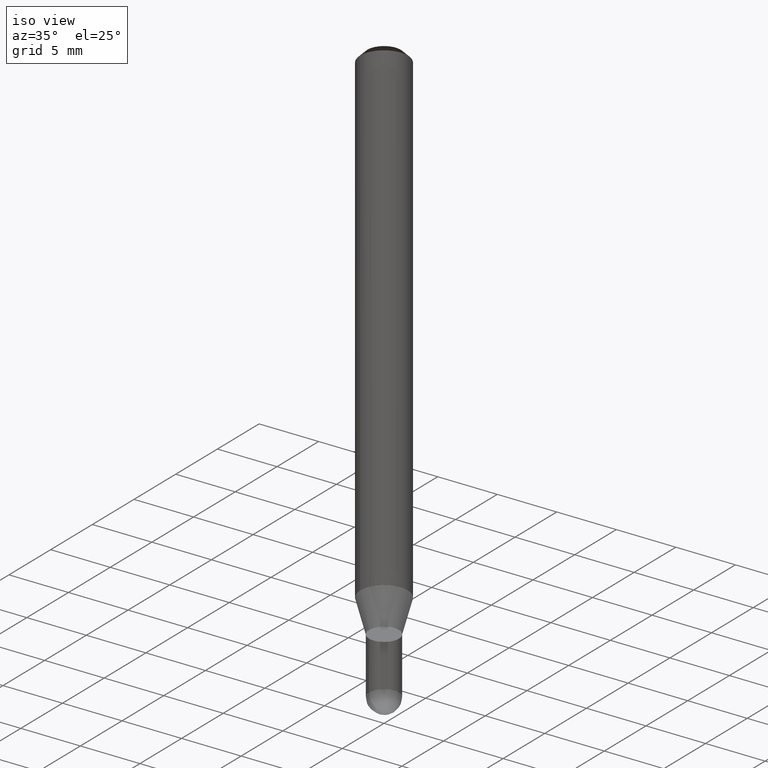
[diagram: clean part render]
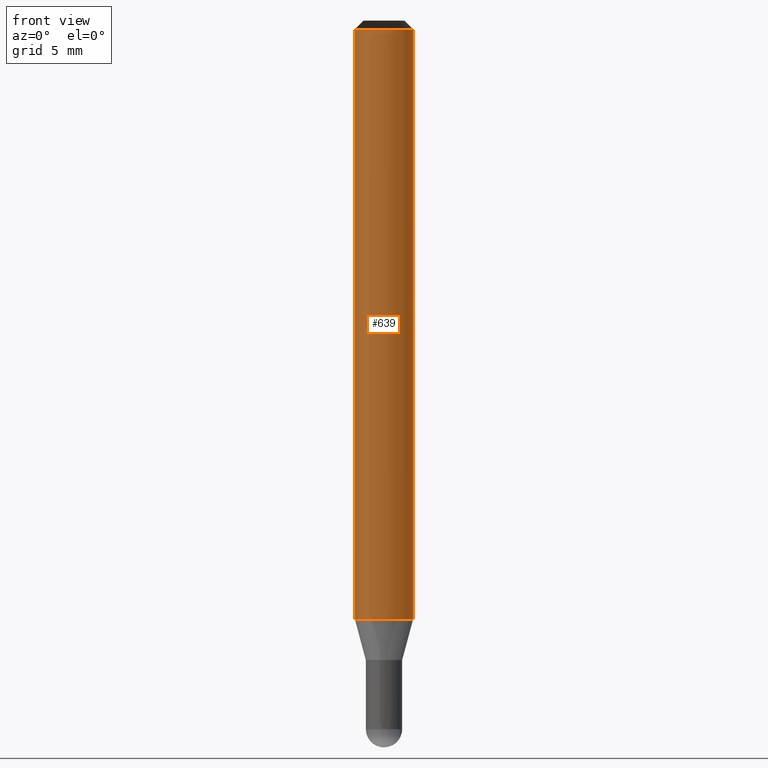
[diagram: tour spotlight — one face highlighted and labeled with its STEP entity id]
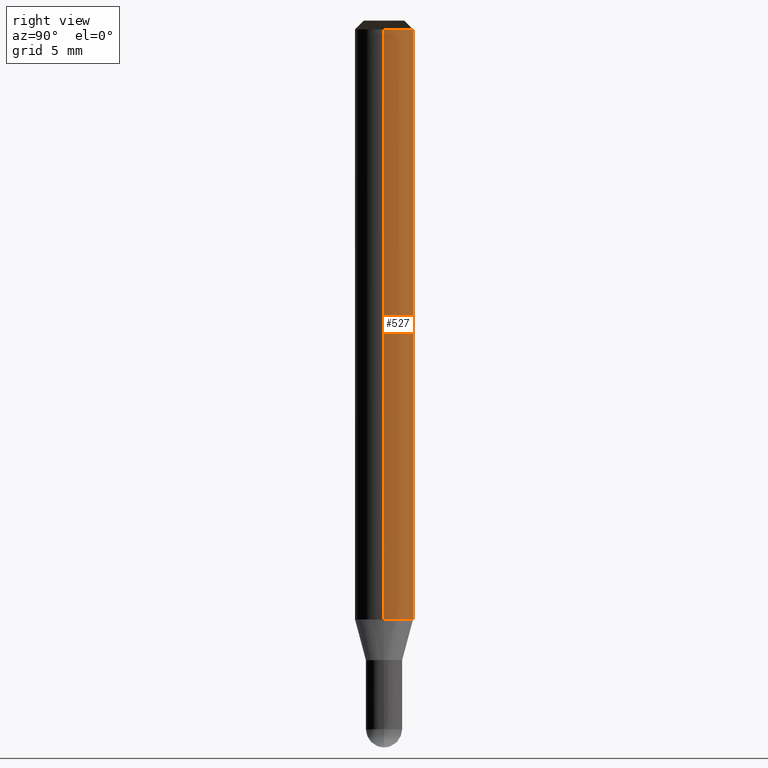
[diagram: tour spotlight — one face highlighted and labeled with its STEP entity id]
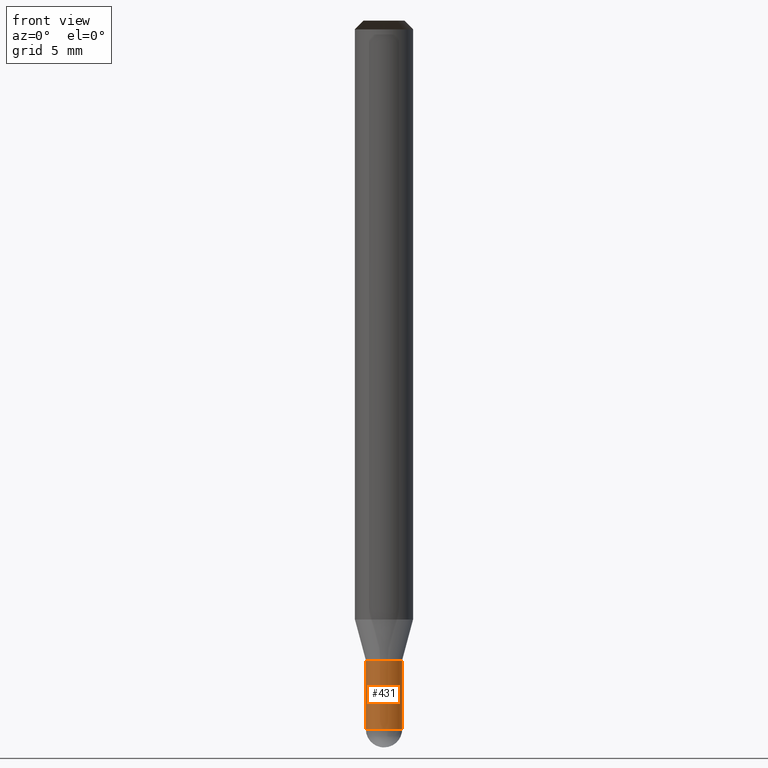
[diagram: tour spotlight — one face highlighted and labeled with its STEP entity id]
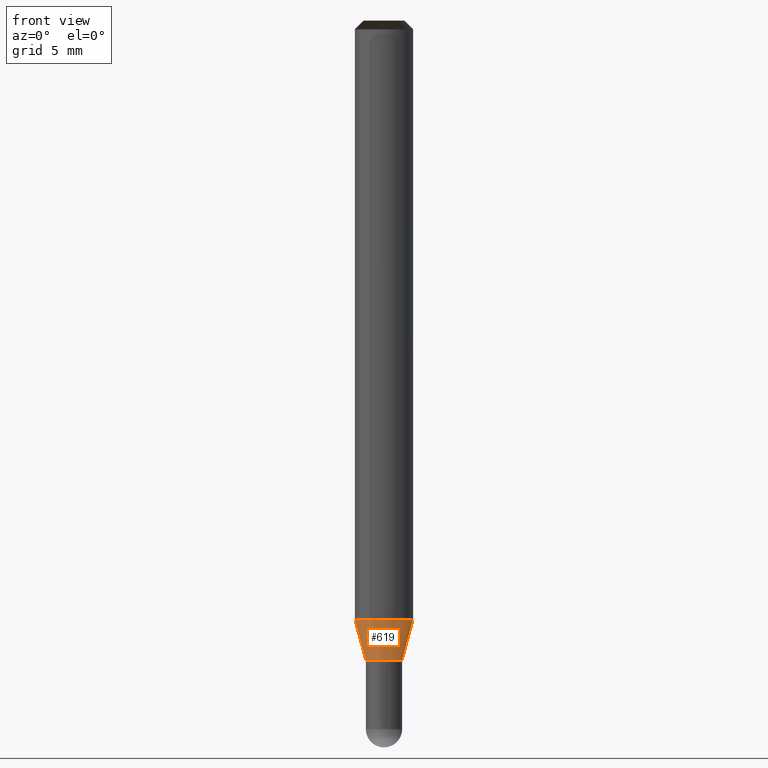
[diagram: tour spotlight — one face highlighted and labeled with its STEP entity id]
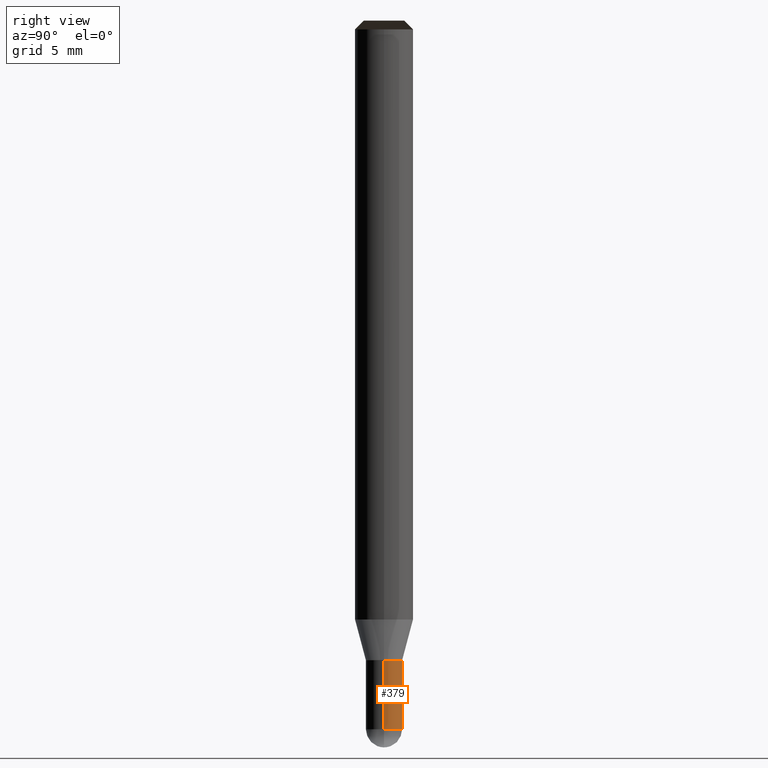
[diagram: tour spotlight — one face highlighted and labeled with its STEP entity id]
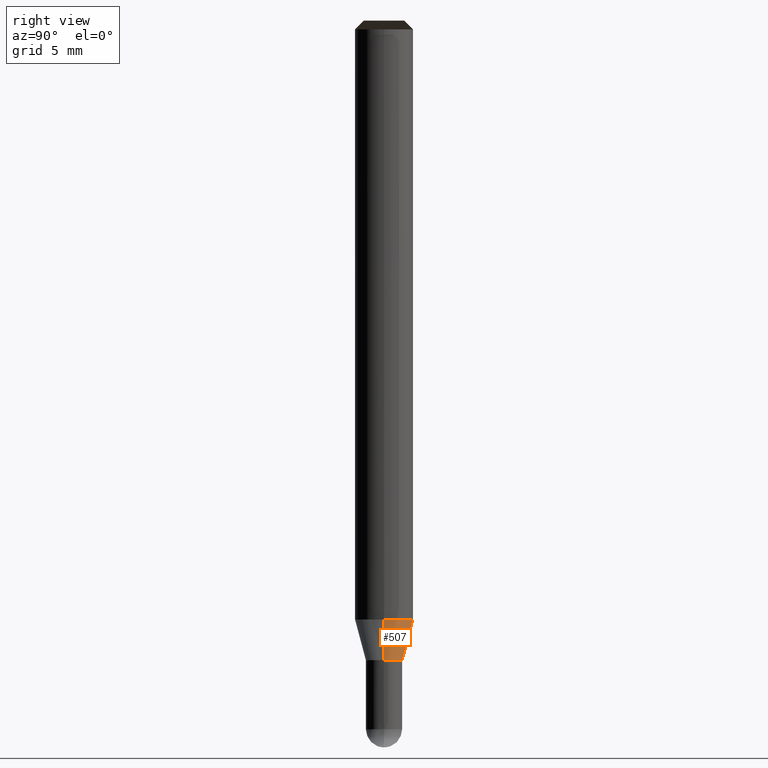
[diagram: tour spotlight — one face highlighted and labeled with its STEP entity id]
A machine part: a face-by-face anatomy tour. The part has 18 B-rep faces; the first image is the clean iso view, then the 6 largest visible faces are spotlighted one at a time (largest first), each with its STEP entity span.

Face 1 — front view, entity #639. In plain terms, the highlighted face is a freeform B-spline surface patch.
Definition (entity closure, byte-faithful):
#311=CARTESIAN_POINT('',(2.0,0.0,0.0));
#315=CARTESIAN_POINT('',(-2.0,0.0,0.0));
#316=CARTESIAN_POINT('',(2.0,0.0,40.6));
#320=CARTESIAN_POINT('',(-2.0,0.0,40.6));
#330=CARTESIAN_POINT('',(-2.0,-2.0,0.0));
#331=CARTESIAN_POINT('',(0.0,-2.0,0.0));
#332=CARTESIAN_POINT('',(2.0,-2.0,0.0));
#333=CARTESIAN_POINT('',(-2.0,-2.0,40.6));
#334=CARTESIAN_POINT('',(0.0,-2.0,40.6));
#335=CARTESIAN_POINT('',(2.0,-2.0,40.6));
#620=(
BOUNDED_SURFACE()
B_SPLINE_SURFACE(1,2,(
(#315,#330,#331,#332,#311),
(#320,#333,#334,#335,#316)
), .UNSPECIFIED.,.F.,.F.,.F.)
B_SPLINE_SURFACE_WITH_KNOTS((2,2),(3,2,3),(
0.0,1.0),(
0.0,0.5,1.0), .UNSPECIFIED.)
GEOMETRIC_REPRESENTATION_ITEM()
RATIONAL_B_SPLINE_SURFACE(((1.0,0.707106781187,1.0,0.707106781187,1.0),
(1.0,0.707106781187,1.0,0.707106781187,1.0)
))
REPRESENTATION_ITEM('')
SURFACE()
);
#621=(
BOUNDED_CURVE()
B_SPLINE_CURVE(1,(#320,#315),.UNSPECIFIED.,.F.,.F.)
B_SPLINE_CURVE_WITH_KNOTS((2,2),
(0.0,1.0),.UNSPECIFIED.)
CURVE()
GEOMETRIC_REPRESENTATION_ITEM()
RATIONAL_B_SPLINE_CURVE((1.0,1.0))
REPRESENTATION_ITEM('')
);
#622=(
BOUNDED_CURVE()
B_SPLINE_CURVE(2,(#315,#330,#331,#332,#311),.UNSPECIFIED.,.F.,.F.)
B_SPLINE_CURVE_WITH_KNOTS((3,2,3),
(0.0,0.5,1.0),.UNSPECIFIED.)
CURVE()
GEOMETRIC_REPRESENTATION_ITEM()
RATIONAL_B_SPLINE_CURVE((1.0,0.707106781187,1.0,0.707106781187,1.0))
REPRESENTATION_ITEM('')
);
#623=(
BOUNDED_CURVE()
B_SPLINE_CURVE(1,(#311,#316),.UNSPECIFIED.,.F.,.F.)
B_SPLINE_CURVE_WITH_KNOTS((2,2),
(0.0,1.0),.UNSPECIFIED.)
CURVE()
GEOMETRIC_REPRESENTATION_ITEM()
RATIONAL_B_SPLINE_CURVE((1.0,1.0))
REPRESENTATION_ITEM('')
);
#624=(
BOUNDED_CURVE()
B_SPLINE_CURVE(2,(#316,#335,#334,#333,#320),.UNSPECIFIED.,.F.,.F.)
B_SPLINE_CURVE_WITH_KNOTS((3,2,3),
(0.0,0.5,1.0),.UNSPECIFIED.)
CURVE()
GEOMETRIC_REPRESENTATION_ITEM()
RATIONAL_B_SPLINE_CURVE((1.0,0.707106781187,1.0,0.707106781187,1.0))
REPRESENTATION_ITEM('')
);
#625=VERTEX_POINT('',#311);
#626=VERTEX_POINT('',#315);
#627=VERTEX_POINT('',#316);
#628=VERTEX_POINT('',#320);
#629=EDGE_CURVE('',#628,#626,#621,.T.);
#630=EDGE_CURVE('',#626,#625,#622,.T.);
#631=EDGE_CURVE('',#625,#627,#623,.T.);
#632=EDGE_CURVE('',#627,#628,#624,.T.);
#633=ORIENTED_EDGE('',*,*,#629,.T.);
#634=ORIENTED_EDGE('',*,*,#630,.T.);
#635=ORIENTED_EDGE('',*,*,#631,.T.);
#636=ORIENTED_EDGE('',*,*,#632,.T.);
#637=EDGE_LOOP('',(#633,#634,#635,#636));
#638=FACE_OUTER_BOUND('',#637,.T.);
#639=ADVANCED_FACE('',(#638),#620,.T.);

Face 2 — right view, entity #527. In plain terms, the highlighted face is a freeform B-spline surface patch.
Definition (entity closure, byte-faithful):
#311=CARTESIAN_POINT('',(2.0,0.0,0.0));
#312=CARTESIAN_POINT('',(2.0,2.0,0.0));
#313=CARTESIAN_POINT('',(0.0,2.0,0.0));
#314=CARTESIAN_POINT('',(-2.0,2.0,0.0));
#315=CARTESIAN_POINT('',(-2.0,0.0,0.0));
#316=CARTESIAN_POINT('',(2.0,0.0,40.6));
#317=CARTESIAN_POINT('',(2.0,2.0,40.6));
#318=CARTESIAN_POINT('',(0.0,2.0,40.6));
#319=CARTESIAN_POINT('',(-2.0,2.0,40.6));
#320=CARTESIAN_POINT('',(-2.0,0.0,40.6));
#508=(
BOUNDED_SURFACE()
B_SPLINE_SURFACE(1,2,(
(#311,#312,#313,#314,#315),
(#316,#317,#318,#319,#320)
), .UNSPECIFIED.,.F.,.F.,.F.)
B_SPLINE_SURFACE_WITH_KNOTS((2,2),(3,2,3),(
0.0,1.0),(
0.0,0.5,1.0), .UNSPECIFIED.)
GEOMETRIC_REPRESENTATION_ITEM()
RATIONAL_B_SPLINE_SURFACE(((1.0,0.707106781187,1.0,0.707106781187,1.0),
(1.0,0.707106781187,1.0,0.707106781187,1.0)
))
REPRESENTATION_ITEM('')
SURFACE()
);
#509=(
BOUNDED_CURVE()
B_SPLINE_CURVE(2,(#316,#317,#318,#319,#320),.UNSPECIFIED.,.F.,.F.)
B_SPLINE_CURVE_WITH_KNOTS((3,2,3),
(0.0,0.5,1.0),.UNSPECIFIED.)
CURVE()
GEOMETRIC_REPRESENTATION_ITEM()
RATIONAL_B_SPLINE_CURVE((1.0,0.707106781187,1.0,0.707106781187,1.0))
REPRESENTATION_ITEM('')
);
#510=(
BOUNDED_CURVE()
B_SPLINE_CURVE(1,(#320,#315),.UNSPECIFIED.,.F.,.F.)
B_SPLINE_CURVE_WITH_KNOTS((2,2),
(0.0,1.0),.UNSPECIFIED.)
CURVE()
GEOMETRIC_REPRESENTATION_ITEM()
RATIONAL_B_SPLINE_CURVE((1.0,1.0))
REPRESENTATION_ITEM('')
);
#511=(
BOUNDED_CURVE()
B_SPLINE_CURVE(2,(#315,#314,#313,#312,#311),.UNSPECIFIED.,.F.,.F.)
B_SPLINE_CURVE_WITH_KNOTS((3,2,3),
(0.0,0.5,1.0),.UNSPECIFIED.)
CURVE()
GEOMETRIC_REPRESENTATION_ITEM()
RATIONAL_B_SPLINE_CURVE((1.0,0.707106781187,1.0,0.707106781187,1.0))
REPRESENTATION_ITEM('')
);
#512=(
BOUNDED_CURVE()
B_SPLINE_CURVE(1,(#311,#316),.UNSPECIFIED.,.F.,.F.)
B_SPLINE_CURVE_WITH_KNOTS((2,2),
(0.0,1.0),.UNSPECIFIED.)
CURVE()
GEOMETRIC_REPRESENTATION_ITEM()
RATIONAL_B_SPLINE_CURVE((1.0,1.0))
REPRESENTATION_ITEM('')
);
#513=VERTEX_POINT('',#311);
#514=VERTEX_POINT('',#315);
#515=VERTEX_POINT('',#316);
#516=VERTEX_POINT('',#320);
#517=EDGE_CURVE('',#515,#516,#509,.T.);
#518=EDGE_CURVE('',#516,#514,#510,.T.);
#519=EDGE_CURVE('',#514,#513,#511,.T.);
#520=EDGE_CURVE('',#513,#515,#512,.T.);
#521=ORIENTED_EDGE('',*,*,#517,.T.);
#522=ORIENTED_EDGE('',*,*,#518,.T.);
#523=ORIENTED_EDGE('',*,*,#519,.T.);
#524=ORIENTED_EDGE('',*,*,#520,.T.);
#525=EDGE_LOOP('',(#521,#522,#523,#524));
#526=FACE_OUTER_BOUND('',#525,.T.);
#527=ADVANCED_FACE('',(#526),#508,.T.);

Face 3 — front view, entity #431. In plain terms, the highlighted face is a freeform B-spline surface patch.
Definition (entity closure, byte-faithful):
#286=CARTESIAN_POINT('',(1.25,0.0,-7.55));
#290=CARTESIAN_POINT('',(-1.25,0.0,-7.55));
#291=CARTESIAN_POINT('',(1.25,0.0,-2.8));
#295=CARTESIAN_POINT('',(-1.25,0.0,-2.8));
#300=CARTESIAN_POINT('',(-1.25,-1.25,-7.55));
#301=CARTESIAN_POINT('',(0.0,-1.25,-7.55));
#302=CARTESIAN_POINT('',(1.25,-1.25,-7.55));
#303=CARTESIAN_POINT('',(-1.25,-1.25,-2.8));
#304=CARTESIAN_POINT('',(0.0,-1.25,-2.8));
#305=CARTESIAN_POINT('',(1.25,-1.25,-2.8));
#412=(
BOUNDED_SURFACE()
B_SPLINE_SURFACE(1,2,(
(#290,#300,#301,#302,#286),
(#295,#303,#304,#305,#291)
), .UNSPECIFIED.,.F.,.F.,.F.)
B_SPLINE_SURFACE_WITH_KNOTS((2,2),(3,2,3),(
0.0,1.0),(
0.0,0.5,1.0), .UNSPECIFIED.)
GEOMETRIC_REPRESENTATION_ITEM()
RATIONAL_B_SPLINE_SURFACE(((1.0,0.707106781187,1.0,0.707106781187,1.0),
(1.0,0.707106781187,1.0,0.707106781187,1.0)
))
REPRESENTATION_ITEM('')
SURFACE()
);
#413=(
BOUNDED_CURVE()
B_SPLINE_CURVE(1,(#295,#290),.UNSPECIFIED.,.F.,.F.)
B_SPLINE_CURVE_WITH_KNOTS((2,2),
(0.0,1.0),.UNSPECIFIED.)
CURVE()
GEOMETRIC_REPRESENTATION_ITEM()
RATIONAL_B_SPLINE_CURVE((1.0,1.0))
REPRESENTATION_ITEM('')
);
#414=(
BOUNDED_CURVE()
B_SPLINE_CURVE(2,(#290,#300,#301,#302,#286),.UNSPECIFIED.,.F.,.F.)
B_SPLINE_CURVE_WITH_KNOTS((3,2,3),
(0.0,0.5,1.0),.UNSPECIFIED.)
CURVE()
GEOMETRIC_REPRESENTATION_ITEM()
RATIONAL_B_SPLINE_CURVE((1.0,0.707106781187,1.0,0.707106781187,1.0))
REPRESENTATION_ITEM('')
);
#415=(
BOUNDED_CURVE()
B_SPLINE_CURVE(1,(#286,#291),.UNSPECIFIED.,.F.,.F.)
B_SPLINE_CURVE_WITH_KNOTS((2,2),
(0.0,1.0),.UNSPECIFIED.)
CURVE()
GEOMETRIC_REPRESENTATION_ITEM()
RATIONAL_B_SPLINE_CURVE((1.0,1.0))
REPRESENTATION_ITEM('')
);
#416=(
BOUNDED_CURVE()
B_SPLINE_CURVE(2,(#291,#305,#304,#303,#295),.UNSPECIFIED.,.F.,.F.)
B_SPLINE_CURVE_WITH_KNOTS((3,2,3),
(0.0,0.5,1.0),.UNSPECIFIED.)
CURVE()
GEOMETRIC_REPRESENTATION_ITEM()
RATIONAL_B_SPLINE_CURVE((1.0,0.707106781187,1.0,0.707106781187,1.0))
REPRESENTATION_ITEM('')
);
#417=VERTEX_POINT('',#286);
#418=VERTEX_POINT('',#290);
#419=VERTEX_POINT('',#291);
#420=VERTEX_POINT('',#295);
#421=EDGE_CURVE('',#420,#418,#413,.T.);
#422=EDGE_CURVE('',#418,#417,#414,.T.);
#423=EDGE_CURVE('',#417,#419,#415,.T.);
#424=EDGE_CURVE('',#419,#420,#416,.T.);
#425=ORIENTED_EDGE('',*,*,#421,.T.);
#426=ORIENTED_EDGE('',*,*,#422,.T.);
#427=ORIENTED_EDGE('',*,*,#423,.T.);
#428=ORIENTED_EDGE('',*,*,#424,.T.);
#429=EDGE_LOOP('',(#425,#426,#427,#428));
#430=FACE_OUTER_BOUND('',#429,.T.);
#431=ADVANCED_FACE('',(#430),#412,.T.);

Face 4 — front view, entity #619. In plain terms, the highlighted face is a freeform B-spline surface patch.
Definition (entity closure, byte-faithful):
#306=CARTESIAN_POINT('',(1.25,0.0,-2.799038105677));
#310=CARTESIAN_POINT('',(-1.25,0.0,-2.799038105677));
#311=CARTESIAN_POINT('',(2.0,0.0,0.0));
#315=CARTESIAN_POINT('',(-2.0,0.0,0.0));
#327=CARTESIAN_POINT('',(-1.25,-1.25,-2.799038105677));
#328=CARTESIAN_POINT('',(0.0,-1.25,-2.799038105677));
#329=CARTESIAN_POINT('',(1.25,-1.25,-2.799038105677));
#330=CARTESIAN_POINT('',(-2.0,-2.0,0.0));
#331=CARTESIAN_POINT('',(0.0,-2.0,0.0));
#332=CARTESIAN_POINT('',(2.0,-2.0,0.0));
#600=(
BOUNDED_SURFACE()
B_SPLINE_SURFACE(1,2,(
(#310,#327,#328,#329,#306),
(#315,#330,#331,#332,#311)
), .UNSPECIFIED.,.F.,.F.,.F.)
B_SPLINE_SURFACE_WITH_KNOTS((2,2),(3,2,3),(
0.0,1.0),(
0.0,0.5,1.0), .UNSPECIFIED.)
GEOMETRIC_REPRESENTATION_ITEM()
RATIONAL_B_SPLINE_SURFACE(((1.0,0.707106781187,1.0,0.707106781187,1.0),
(1.0,0.707106781187,1.0,0.707106781187,1.0)
))
REPRESENTATION_ITEM('')
SURFACE()
);
#601=(
BOUNDED_CURVE()
B_SPLINE_CURVE(1,(#315,#310),.UNSPECIFIED.,.F.,.F.)
B_SPLINE_CURVE_WITH_KNOTS((2,2),
(0.0,1.0),.UNSPECIFIED.)
CURVE()
GEOMETRIC_REPRESENTATION_ITEM()
RATIONAL_B_SPLINE_CURVE((1.0,1.0))
REPRESENTATION_ITEM('')
);
#602=(
BOUNDED_CURVE()
B_SPLINE_CURVE(2,(#310,#327,#328,#329,#306),.UNSPECIFIED.,.F.,.F.)
B_SPLINE_CURVE_WITH_KNOTS((3,2,3),
(0.0,0.5,1.0),.UNSPECIFIED.)
CURVE()
GEOMETRIC_REPRESENTATION_ITEM()
RATIONAL_B_SPLINE_CURVE((1.0,0.707106781187,1.0,0.707106781187,1.0))
REPRESENTATION_ITEM('')
);
#603=(
BOUNDED_CURVE()
B_SPLINE_CURVE(1,(#306,#311),.UNSPECIFIED.,.F.,.F.)
B_SPLINE_CURVE_WITH_KNOTS((2,2),
(0.0,1.0),.UNSPECIFIED.)
CURVE()
GEOMETRIC_REPRESENTATION_ITEM()
RATIONAL_B_SPLINE_CURVE((1.0,1.0))
REPRESENTATION_ITEM('')
);
#604=(
BOUNDED_CURVE()
B_SPLINE_CURVE(2,(#311,#332,#331,#330,#315),.UNSPECIFIED.,.F.,.F.)
B_SPLINE_CURVE_WITH_KNOTS((3,2,3),
(0.0,0.5,1.0),.UNSPECIFIED.)
CURVE()
GEOMETRIC_REPRESENTATION_ITEM()
RATIONAL_B_SPLINE_CURVE((1.0,0.707106781187,1.0,0.707106781187,1.0))
REPRESENTATION_ITEM('')
);
#605=VERTEX_POINT('',#306);
#606=VERTEX_POINT('',#310);
#607=VERTEX_POINT('',#311);
#608=VERTEX_POINT('',#315);
#609=EDGE_CURVE('',#608,#606,#601,.T.);
#610=EDGE_CURVE('',#606,#605,#602,.T.);
#611=EDGE_CURVE('',#605,#607,#603,.T.);
#612=EDGE_CURVE('',#607,#608,#604,.T.);
#613=ORIENTED_EDGE('',*,*,#609,.T.);
#614=ORIENTED_EDGE('',*,*,#610,.T.);
#615=ORIENTED_EDGE('',*,*,#611,.T.);
#616=ORIENTED_EDGE('',*,*,#612,.T.);
#617=EDGE_LOOP('',(#613,#614,#615,#616));
#618=FACE_OUTER_BOUND('',#617,.T.);
#619=ADVANCED_FACE('',(#618),#600,.T.);

Face 5 — right view, entity #379. In plain terms, the highlighted face is a freeform B-spline surface patch.
Definition (entity closure, byte-faithful):
#286=CARTESIAN_POINT('',(1.25,0.0,-7.55));
#287=CARTESIAN_POINT('',(1.25,1.25,-7.55));
#288=CARTESIAN_POINT('',(0.0,1.25,-7.55));
#289=CARTESIAN_POINT('',(-1.25,1.25,-7.55));
#290=CARTESIAN_POINT('',(-1.25,0.0,-7.55));
#291=CARTESIAN_POINT('',(1.25,0.0,-2.8));
#292=CARTESIAN_POINT('',(1.25,1.25,-2.8));
#293=CARTESIAN_POINT('',(0.0,1.25,-2.8));
#294=CARTESIAN_POINT('',(-1.25,1.25,-2.8));
#295=CARTESIAN_POINT('',(-1.25,0.0,-2.8));
#360=(
BOUNDED_SURFACE()
B_SPLINE_SURFACE(1,2,(
(#286,#287,#288,#289,#290),
(#291,#292,#293,#294,#295)
), .UNSPECIFIED.,.F.,.F.,.F.)
B_SPLINE_SURFACE_WITH_KNOTS((2,2),(3,2,3),(
0.0,1.0),(
0.0,0.5,1.0), .UNSPECIFIED.)
GEOMETRIC_REPRESENTATION_ITEM()
RATIONAL_B_SPLINE_SURFACE(((1.0,0.707106781187,1.0,0.707106781187,1.0),
(1.0,0.707106781187,1.0,0.707106781187,1.0)
))
REPRESENTATION_ITEM('')
SURFACE()
);
#361=(
BOUNDED_CURVE()
B_SPLINE_CURVE(2,(#291,#292,#293,#294,#295),.UNSPECIFIED.,.F.,.F.)
B_SPLINE_CURVE_WITH_KNOTS((3,2,3),
(0.0,0.5,1.0),.UNSPECIFIED.)
CURVE()
GEOMETRIC_REPRESENTATION_ITEM()
RATIONAL_B_SPLINE_CURVE((1.0,0.707106781187,1.0,0.707106781187,1.0))
REPRESENTATION_ITEM('')
);
#362=(
BOUNDED_CURVE()
B_SPLINE_CURVE(1,(#295,#290),.UNSPECIFIED.,.F.,.F.)
B_SPLINE_CURVE_WITH_KNOTS((2,2),
(0.0,1.0),.UNSPECIFIED.)
CURVE()
GEOMETRIC_REPRESENTATION_ITEM()
RATIONAL_B_SPLINE_CURVE((1.0,1.0))
REPRESENTATION_ITEM('')
);
#363=(
BOUNDED_CURVE()
B_SPLINE_CURVE(2,(#290,#289,#288,#287,#286),.UNSPECIFIED.,.F.,.F.)
B_SPLINE_CURVE_WITH_KNOTS((3,2,3),
(0.0,0.5,1.0),.UNSPECIFIED.)
CURVE()
GEOMETRIC_REPRESENTATION_ITEM()
RATIONAL_B_SPLINE_CURVE((1.0,0.707106781187,1.0,0.707106781187,1.0))
REPRESENTATION_ITEM('')
);
#364=(
BOUNDED_CURVE()
B_SPLINE_CURVE(1,(#286,#291),.UNSPECIFIED.,.F.,.F.)
B_SPLINE_CURVE_WITH_KNOTS((2,2),
(0.0,1.0),.UNSPECIFIED.)
CURVE()
GEOMETRIC_REPRESENTATION_ITEM()
RATIONAL_B_SPLINE_CURVE((1.0,1.0))
REPRESENTATION_ITEM('')
);
#365=VERTEX_POINT('',#286);
#366=VERTEX_POINT('',#290);
#367=VERTEX_POINT('',#291);
#368=VERTEX_POINT('',#295);
#369=EDGE_CURVE('',#367,#368,#361,.T.);
#370=EDGE_CURVE('',#368,#366,#362,.T.);
#371=EDGE_CURVE('',#366,#365,#363,.T.);
#372=EDGE_CURVE('',#365,#367,#364,.T.);
#373=ORIENTED_EDGE('',*,*,#369,.T.);
#374=ORIENTED_EDGE('',*,*,#370,.T.);
#375=ORIENTED_EDGE('',*,*,#371,.T.);
#376=ORIENTED_EDGE('',*,*,#372,.T.);
#377=EDGE_LOOP('',(#373,#374,#375,#376));
#378=FACE_OUTER_BOUND('',#377,.T.);
#379=ADVANCED_FACE('',(#378),#360,.T.);

Face 6 — right view, entity #507. In plain terms, the highlighted face is a freeform B-spline surface patch.
Definition (entity closure, byte-faithful):
#306=CARTESIAN_POINT('',(1.25,0.0,-2.799038105677));
#307=CARTESIAN_POINT('',(1.25,1.25,-2.799038105677));
#308=CARTESIAN_POINT('',(0.0,1.25,-2.799038105677));
#309=CARTESIAN_POINT('',(-1.25,1.25,-2.799038105677));
#310=CARTESIAN_POINT('',(-1.25,0.0,-2.799038105677));
#311=CARTESIAN_POINT('',(2.0,0.0,0.0));
#312=CARTESIAN_POINT('',(2.0,2.0,0.0));
#313=CARTESIAN_POINT('',(0.0,2.0,0.0));
#314=CARTESIAN_POINT('',(-2.0,2.0,0.0));
#315=CARTESIAN_POINT('',(-2.0,0.0,0.0));
#488=(
BOUNDED_SURFACE()
B_SPLINE_SURFACE(1,2,(
(#306,#307,#308,#309,#310),
(#311,#312,#313,#314,#315)
), .UNSPECIFIED.,.F.,.F.,.F.)
B_SPLINE_SURFACE_WITH_KNOTS((2,2),(3,2,3),(
0.0,1.0),(
0.0,0.5,1.0), .UNSPECIFIED.)
GEOMETRIC_REPRESENTATION_ITEM()
RATIONAL_B_SPLINE_SURFACE(((1.0,0.707106781187,1.0,0.707106781187,1.0),
(1.0,0.707106781187,1.0,0.707106781187,1.0)
))
REPRESENTATION_ITEM('')
SURFACE()
);
#489=(
BOUNDED_CURVE()
B_SPLINE_CURVE(2,(#311,#312,#313,#314,#315),.UNSPECIFIED.,.F.,.F.)
B_SPLINE_CURVE_WITH_KNOTS((3,2,3),
(0.0,0.5,1.0),.UNSPECIFIED.)
CURVE()
GEOMETRIC_REPRESENTATION_ITEM()
RATIONAL_B_SPLINE_CURVE((1.0,0.707106781187,1.0,0.707106781187,1.0))
REPRESENTATION_ITEM('')
);
#490=(
BOUNDED_CURVE()
B_SPLINE_CURVE(1,(#315,#310),.UNSPECIFIED.,.F.,.F.)
B_SPLINE_CURVE_WITH_KNOTS((2,2),
(0.0,1.0),.UNSPECIFIED.)
CURVE()
GEOMETRIC_REPRESENTATION_ITEM()
RATIONAL_B_SPLINE_CURVE((1.0,1.0))
REPRESENTATION_ITEM('')
);
#491=(
BOUNDED_CURVE()
B_SPLINE_CURVE(2,(#310,#309,#308,#307,#306),.UNSPECIFIED.,.F.,.F.)
B_SPLINE_CURVE_WITH_KNOTS((3,2,3),
(0.0,0.5,1.0),.UNSPECIFIED.)
CURVE()
GEOMETRIC_REPRESENTATION_ITEM()
RATIONAL_B_SPLINE_CURVE((1.0,0.707106781187,1.0,0.707106781187,1.0))
REPRESENTATION_ITEM('')
);
#492=(
BOUNDED_CURVE()
B_SPLINE_CURVE(1,(#306,#311),.UNSPECIFIED.,.F.,.F.)
B_SPLINE_CURVE_WITH_KNOTS((2,2),
(0.0,1.0),.UNSPECIFIED.)
CURVE()
GEOMETRIC_REPRESENTATION_ITEM()
RATIONAL_B_SPLINE_CURVE((1.0,1.0))
REPRESENTATION_ITEM('')
);
#493=VERTEX_POINT('',#306);
#494=VERTEX_POINT('',#310);
#495=VERTEX_POINT('',#311);
#496=VERTEX_POINT('',#315);
#497=EDGE_CURVE('',#495,#496,#489,.T.);
#498=EDGE_CURVE('',#496,#494,#490,.T.);
#499=EDGE_CURVE('',#494,#493,#491,.T.);
#500=EDGE_CURVE('',#493,#495,#492,.T.);
#501=ORIENTED_EDGE('',*,*,#497,.T.);
#502=ORIENTED_EDGE('',*,*,#498,.T.);
#503=ORIENTED_EDGE('',*,*,#499,.T.);
#504=ORIENTED_EDGE('',*,*,#500,.T.);
#505=EDGE_LOOP('',(#501,#502,#503,#504));
#506=FACE_OUTER_BOUND('',#505,.T.);
#507=ADVANCED_FACE('',(#506),#488,.T.);